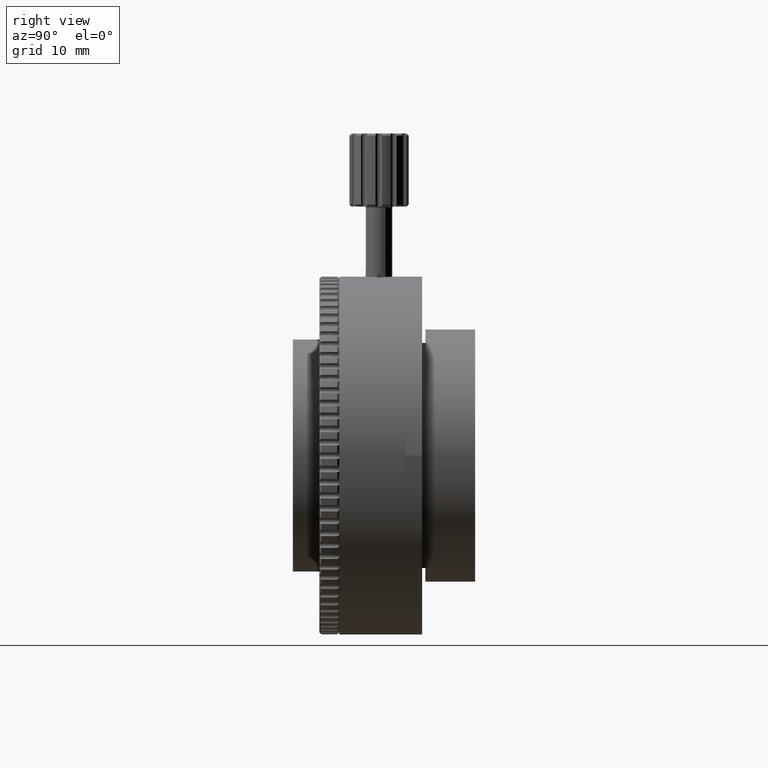
[diagram: clean part render]
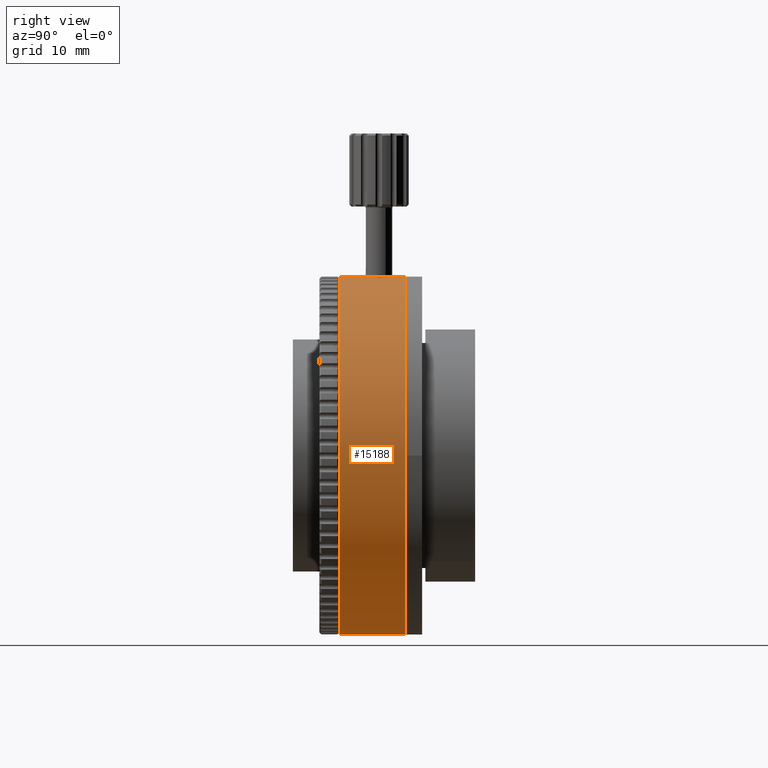
[diagram: same view with one face highlighted and labeled with its STEP entity id]
A machine part, right view. The second image highlights one B-rep face of the part: STEP entity #15188.
In plain terms, the highlighted cylindrical surface (partial cylindrical patch) has radius 27 mm, axis along (-0, 1, -0).
Its self-contained STEP definition (entity closure, byte-faithful):
#357 = EDGE_CURVE ( 'NONE', #23069, #1582, #22105, .T. ) ;
#454 = CARTESIAN_POINT ( 'NONE',  ( 9.352963249104790933, 108.6097110134007835, 103.4537357609061559 ) ) ;
#661 = CARTESIAN_POINT ( 'NONE',  ( 10.56868309152072349, 11.67697026882938971, 103.4269424355696998 ) ) ;
#781 = CARTESIAN_POINT ( 'NONE',  ( 9.867634897472091993, 12.02822664399869979, 103.4491314036037011 ) ) ;
#1009 = CARTESIAN_POINT ( 'NONE',  ( 11.06785260692682016, 11.07508590718073727, 103.3993886426418385 ) ) ;
#1534 = EDGE_CURVE ( 'NONE', #1582, #14427, #4333, .T. ) ;
#1582 = VERTEX_POINT ( 'NONE', #15500 ) ;
#2381 = VERTEX_POINT ( 'NONE', #3083 ) ;
#2644 = ORIENTED_EDGE ( 'NONE', *, *, #21831, .F. ) ;
#2929 = CARTESIAN_POINT ( 'NONE',  ( 11.30715095345714083, 10.07014266807589742, 103.3829234652569795 ) ) ;
#3083 = CARTESIAN_POINT ( 'NONE',  ( 9.352963249104790933, 14.07014266807713199, 103.4537357609061559 ) ) ;
#3144 = CARTESIAN_POINT ( 'NONE',  ( 10.34624951081386079, 8.321432457245792946, 103.4356676764305689 ) ) ;
#3354 = CARTESIAN_POINT ( 'NONE',  ( 10.65649676373524812, 8.555994179040887104, 103.4224018041839201 ) ) ;
#4059 = DIRECTION ( 'NONE',  ( 0.000000000000000000, 0.000000000000000000, 1.000000000000000000 ) ) ;
#4333 = LINE ( 'NONE', #11416, #6137 ) ;
#4751 = CARTESIAN_POINT ( 'NONE',  ( 11.29514459615657174, 10.32942774429842814, 103.3838029217044152 ) ) ;
#4758 = CARTESIAN_POINT ( 'NONE',  ( 9.352963249104790933, 4.070142668077137316, 76.45373576090617007 ) ) ;
#5040 = CARTESIAN_POINT ( 'NONE',  ( 9.352963249104790933, 4.070142668077137316, 103.4537357609061559 ) ) ;
#5204 = CARTESIAN_POINT ( 'NONE',  ( 11.06747804776331634, 9.064085724744570527, 103.3994144140011997 ) ) ;
#5353 = DIRECTION ( 'NONE',  ( -0.000000000000000000, 1.000000000000000000, -0.000000000000000000 ) ) ;
#5423 = EDGE_CURVE ( 'NONE', #22079, #20109, #16981, .T. ) ;
#5798 = ORIENTED_EDGE ( 'NONE', *, *, #5423, .F. ) ;
#6046 = CARTESIAN_POINT ( 'NONE',  ( 9.352963249104787380, 12.09514266807717142, 103.4537357609061559 ) ) ;
#6137 = VECTOR ( 'NONE', #20299, 1000.000000000000000 ) ;
#6142 = CARTESIAN_POINT ( 'NONE',  ( 9.352963249104790933, 8.045142668077135184, 103.4537357609061559 ) ) ;
#6165 = CARTESIAN_POINT ( 'NONE',  ( 11.21026612134325440, 10.71287308706177299, 103.3898210318566413 ) ) ;
#6622 = CARTESIAN_POINT ( 'NONE',  ( 10.23093746487300670, 8.256277022631115514, 103.4397203064462474 ) ) ;
#6652 = EDGE_CURVE ( 'NONE', #20109, #2381, #7803, .T. ) ;
#6861 = CARTESIAN_POINT ( 'NONE',  ( 9.352963249104790933, 8.045142668077135184, 103.4537357609061559 ) ) ;
#7355 = VECTOR ( 'NONE', #11301, 1000.000000000000000 ) ;
#7803 = LINE ( 'NONE', #454, #7355 ) ;
#7882 = CARTESIAN_POINT ( 'NONE',  ( 9.352963249104787380, 12.09514266807717142, 103.4537357609061559 ) ) ;
#8112 = CARTESIAN_POINT ( 'NONE',  ( 10.92515551193055501, 11.30090370443396175, 103.4085139001910250 ) ) ;
#8268 = CARTESIAN_POINT ( 'NONE',  ( 9.352963249104790933, 108.6097110134007835, 76.45373576090617007 ) ) ;
#8530 = LINE ( 'NONE', #15982, #21040 ) ;
#8605 = FACE_OUTER_BOUND ( 'NONE', #17031, .T. ) ;
#9750 = CARTESIAN_POINT ( 'NONE',  ( 11.30715095345714083, 10.07014266807589742, 103.3829234652569795 ) ) ;
#10097 = ORIENTED_EDGE ( 'NONE', *, *, #357, .T. ) ;
#10321 = CARTESIAN_POINT ( 'NONE',  ( 11.21070966977479344, 9.428621108567558196, 103.3897909287321824 ) ) ;
#10436 = CARTESIAN_POINT ( 'NONE',  ( 11.29480182669012933, 9.808402505130871418, 103.3838276492960375 ) ) ;
#10724 = CARTESIAN_POINT ( 'NONE',  ( 9.352963249104794485, 14.07014266807713199, 49.45373576090617718 ) ) ;
#10792 = EDGE_CURVE ( 'NONE', #2381, #14427, #18602, .T. ) ;
#11162 = EDGE_CURVE ( 'NONE', #14666, #22079, #16024, .T. ) ;
#11301 = DIRECTION ( 'NONE',  ( -0.000000000000000000, 1.000000000000000000, -0.000000000000000000 ) ) ;
#11416 = CARTESIAN_POINT ( 'NONE',  ( 9.352963249104794485, 108.6097110134007835, 49.45373576090617718 ) ) ;
#12086 = CARTESIAN_POINT ( 'NONE',  ( 10.92693089413415031, 8.841177571210039332, 103.4084239795227944 ) ) ;
#12183 = CARTESIAN_POINT ( 'NONE',  ( 9.869236520958727610, 8.112482291169277104, 103.4491026658564721 ) ) ;
#12295 = DIRECTION ( 'NONE',  ( -0.000000000000000000, 1.000000000000000000, -0.000000000000000000 ) ) ;
#13378 = AXIS2_PLACEMENT_3D ( 'NONE', #21330, #5353, #14537 ) ;
#13481 = CARTESIAN_POINT ( 'NONE',  ( 10.35045084142627125, 11.83162668424157360, 103.4363518178389967 ) ) ;
#13740 = ORIENTED_EDGE ( 'NONE', *, *, #1534, .T. ) ;
#13949 = CARTESIAN_POINT ( 'NONE',  ( 11.30715095345560250, 9.940190760194395736, 103.3829234652571074 ) ) ;
#14108 = DIRECTION ( 'NONE',  ( -0.000000000000000000, 1.000000000000000000, -0.000000000000000000 ) ) ;
#14427 = VERTEX_POINT ( 'NONE', #10724 ) ;
#14537 = DIRECTION ( 'NONE',  ( 0.000000000000000000, 0.000000000000000000, 1.000000000000000000 ) ) ;
#14666 = VERTEX_POINT ( 'NONE', #6142 ) ;
#15188 = ADVANCED_FACE ( 'NONE', ( #8605 ), #15498, .T. ) ;
#15354 = CARTESIAN_POINT ( 'NONE',  ( 9.612531262232279161, 12.08170891821785631, 103.4527893972462635 ) ) ;
#15498 = CYLINDRICAL_SURFACE ( 'NONE', #16088, 26.99999999999999645 ) ;
#15500 = CARTESIAN_POINT ( 'NONE',  ( 9.352963249104794485, 4.070142668077137316, 49.45373576090617718 ) ) ;
#15760 = AXIS2_PLACEMENT_3D ( 'NONE', #4758, #12295, #21183 ) ;
#15825 = CARTESIAN_POINT ( 'NONE',  ( 10.55837034459733204, 8.471087437087374994, 103.4270236811029093 ) ) ;
#15982 = CARTESIAN_POINT ( 'NONE',  ( 9.352963249104790933, 108.6097110134007835, 103.4537357609061559 ) ) ;
#16024 = B_SPLINE_CURVE_WITH_KNOTS ( 'NONE', 3,
 ( #6861, #17101, #20731, #12183, #22603, #6622, #3144, #15825, #3354, #12086, #5204, #10321, #17447, #10436, #13949, #17569 ),
 .UNSPECIFIED., .F., .F.,
 ( 4, 2, 2, 2, 2, 2, 2, 4 ),
 ( 0.001576792092882374138, 0.001966690932294170354, 0.002356589771705966570, 0.002746488611117762352, 0.003136387450529558567, 0.003916185129353148830, 0.004306083968764947215, 0.004695982808176745599 ),
 .UNSPECIFIED. ) ;
#16088 = AXIS2_PLACEMENT_3D ( 'NONE', #8268, #22516, #4059 ) ;
#16981 = B_SPLINE_CURVE_WITH_KNOTS ( 'NONE', 3,
 ( #9750, #20264, #4751, #22483, #6165, #1009, #8112, #661, #13481, #18731, #781, #15354, #20488, #6046 ),
 .UNSPECIFIED., .F., .F.,
 ( 4, 2, 2, 2, 2, 2, 4 ),
 ( 0.004695982808176745599, 0.005086407503167226021, 0.005476832198157706444, 0.006257681588138669024, 0.007038530978119631604, 0.007428955673110110292, 0.007819380368100588979 ),
 .UNSPECIFIED. ) ;
#17031 = EDGE_LOOP ( 'NONE', ( #10097, #13740, #17397, #19430, #5798, #21180, #2644 ) ) ;
#17101 = CARTESIAN_POINT ( 'NONE',  ( 9.482540870156617174, 8.045142668077138737, 103.4537357609061843 ) ) ;
#17397 = ORIENTED_EDGE ( 'NONE', *, *, #10792, .F. ) ;
#17447 = CARTESIAN_POINT ( 'NONE',  ( 11.24650186935161322, 9.553213023925332337, 103.3872668638297796 ) ) ;
#17569 = CARTESIAN_POINT ( 'NONE',  ( 11.30715095345714083, 10.07014266807589742, 103.3829234652569795 ) ) ;
#18602 = CIRCLE ( 'NONE', #13378, 26.99999999999999645 ) ;
#18731 = CARTESIAN_POINT ( 'NONE',  ( 9.993886003658330353, 11.98768430319374190, 103.4463894969853470 ) ) ;
#19430 = ORIENTED_EDGE ( 'NONE', *, *, #6652, .F. ) ;
#20109 = VERTEX_POINT ( 'NONE', #7882 ) ;
#20264 = CARTESIAN_POINT ( 'NONE',  ( 11.30715095345576948, 10.20026984176668705, 103.3829234652570364 ) ) ;
#20299 = DIRECTION ( 'NONE',  ( -0.000000000000000000, 1.000000000000000000, -0.000000000000000000 ) ) ;
#20488 = CARTESIAN_POINT ( 'NONE',  ( 9.483496153680574636, 12.09514266807713057, 103.4537357609061985 ) ) ;
#20731 = CARTESIAN_POINT ( 'NONE',  ( 9.613353443720264124, 8.058661795591808286, 103.4527833250456155 ) ) ;
#21040 = VECTOR ( 'NONE', #14108, 1000.000000000000000 ) ;
#21180 = ORIENTED_EDGE ( 'NONE', *, *, #11162, .F. ) ;
#21183 = DIRECTION ( 'NONE',  ( 0.000000000000000000, 0.000000000000000000, 1.000000000000000000 ) ) ;
#21330 = CARTESIAN_POINT ( 'NONE',  ( 9.352963249104790933, 14.07014266807713199, 76.45373576090617007 ) ) ;
#21831 = EDGE_CURVE ( 'NONE', #23069, #14666, #8530, .T. ) ;
#22079 = VERTEX_POINT ( 'NONE', #2929 ) ;
#22105 = CIRCLE ( 'NONE', #15760, 26.99999999999999645 ) ;
#22483 = CARTESIAN_POINT ( 'NONE',  ( 11.24686564137436307, 10.58578510080440971, 103.3872412772420546 ) ) ;
#22516 = DIRECTION ( 'NONE',  ( -0.000000000000000000, 1.000000000000000000, -0.000000000000000000 ) ) ;
#22603 = CARTESIAN_POINT ( 'NONE',  ( 9.992698944472753197, 8.152156318436908577, 103.4464188223536212 ) ) ;
#23069 = VERTEX_POINT ( 'NONE', #5040 ) ;